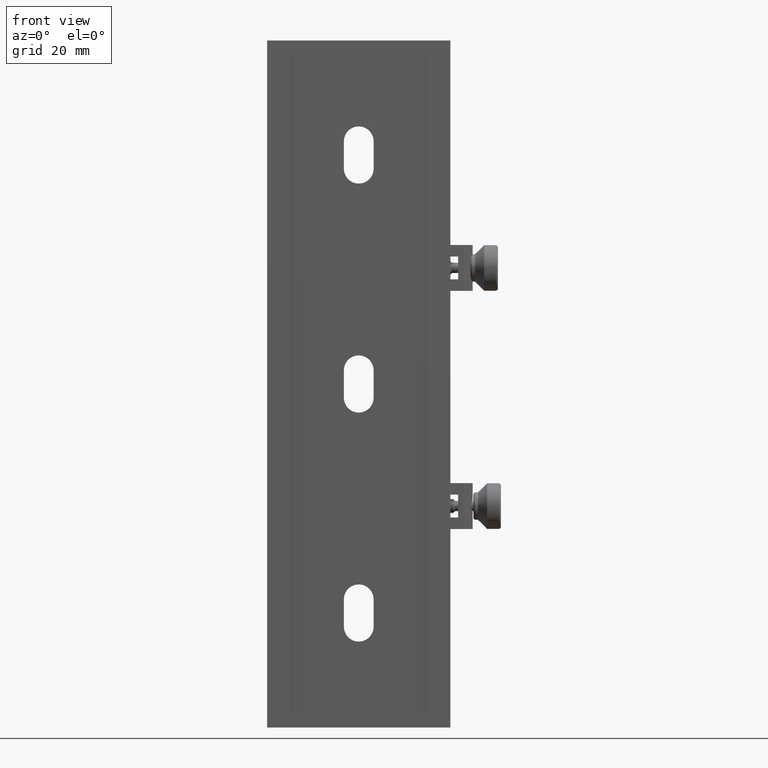
[diagram: clean part render]
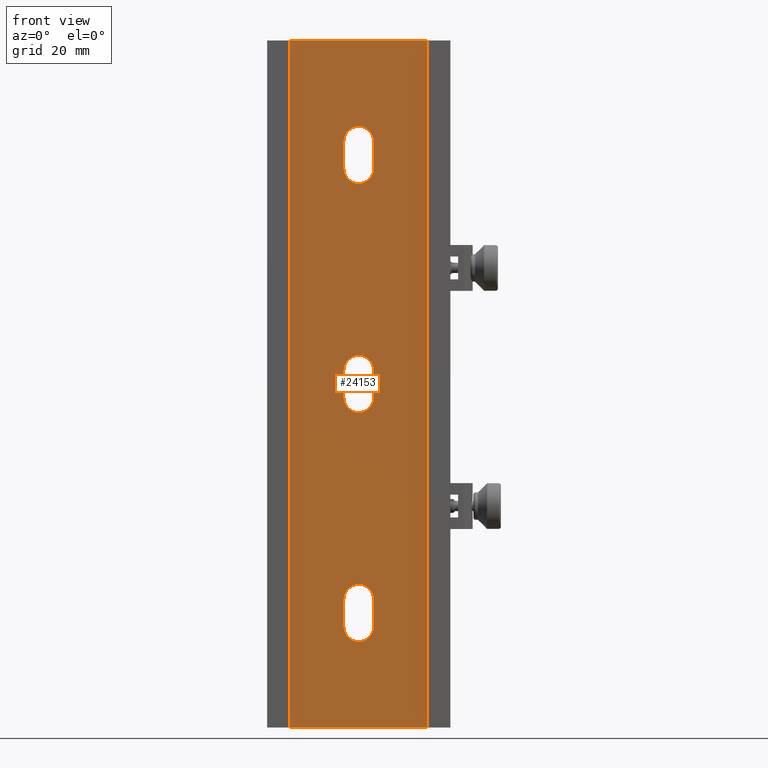
[diagram: same view with one face highlighted and labeled with its STEP entity id]
A machine part, front view. The second image highlights one B-rep face of the part: STEP entity #24153.
In plain terms, the highlighted planar face has unit normal (0, -1, 0).
Its self-contained STEP definition (entity closure, byte-faithful):
#347 = CARTESIAN_POINT ( 'NONE',  ( -173.3798720116146512, -12.36576198869400045, 5.838090410557754240 ) ) ;
#350 = VERTEX_POINT ( 'NONE', #18691 ) ;
#492 = CARTESIAN_POINT ( 'NONE',  ( -173.0271867229824920, -12.36576198869399867, -5.602433634785423777 ) ) ;
#741 = CARTESIAN_POINT ( 'NONE',  ( -177.0151139577997697, -12.36576198869400223, -44.39756636521666877 ) ) ;
#756 = CARTESIAN_POINT ( 'NONE',  ( -178.2711503403900508, -12.36576198869399867, -3.431352460069973631 ) ) ;
#1060 = ORIENTED_EDGE ( 'NONE', *, *, #20217, .F. ) ;
#1205 = CARTESIAN_POINT ( 'NONE',  ( -171.7711503403899940, -12.36576198869400400, 53.43135246006768568 ) ) ;
#1428 = CARTESIAN_POINT ( 'NONE',  ( -178.2711503403900224, -12.36576198869400045, -3.000000000000000000 ) ) ;
#1474 = CARTESIAN_POINT ( 'NONE',  ( -173.0273899555250807, -12.36576198869400223, 55.60223051832749519 ) ) ;
#1596 = CARTESIAN_POINT ( 'NONE',  ( -178.2711503403900508, -12.36576198869400400, -53.43135246006607986 ) ) ;
#1625 = CARTESIAN_POINT ( 'NONE',  ( -178.2711503403900224, -12.36576198869400045, 3.000000000000000000 ) ) ;
#1724 = CARTESIAN_POINT ( 'NONE',  ( -190.0211503403900224, -12.36576198869400045, -25.00000000000000000 ) ) ;
#1808 = EDGE_CURVE ( 'NONE', #6291, #16759, #14099, .T. ) ;
#2464 = CARTESIAN_POINT ( 'NONE',  ( -171.7711503403899940, -12.36576198869400045, 47.00000000000000000 ) ) ;
#2607 = CARTESIAN_POINT ( 'NONE',  ( -175.0211503403900224, -12.36576198869400045, 0.000000000000000000 ) ) ;
#2768 = ORIENTED_EDGE ( 'NONE', *, *, #33820, .T. ) ;
#2805 = VERTEX_POINT ( 'NONE', #12793 ) ;
#3140 = CARTESIAN_POINT ( 'NONE',  ( -171.7711503403899940, -12.36576198869400045, -3.000000000000000000 ) ) ;
#3500 = B_SPLINE_CURVE_WITH_KNOTS ( 'NONE', 3,
 ( #26560, #27316, #22615, #51069 ),
 .UNSPECIFIED., .F., .F.,
 ( 4, 4 ),
 ( 0.000000000000000000, 1.000000000000000000 ),
 .UNSPECIFIED. ) ;
#3509 = CARTESIAN_POINT ( 'NONE',  ( -172.1830599297850313, -12.36576198869399867, -54.64127832872917168 ) ) ;
#3523 = CARTESIAN_POINT ( 'NONE',  ( -171.7711503403899940, -12.36576198869400045, 3.431352460070659305 ) ) ;
#3620 = CARTESIAN_POINT ( 'NONE',  ( -177.0149107252553051, -12.36576198869400223, 44.39776948167231296 ) ) ;
#3781 = CARTESIAN_POINT ( 'NONE',  ( -160.0211503403899940, -12.36576198869400045, 75.00000000000000000 ) ) ;
#4332 = EDGE_LOOP ( 'NONE', ( #33953, #1060, #35070, #31483 ) ) ;
#4438 = CARTESIAN_POINT ( 'NONE',  ( -171.7711503403899940, -12.36576198869400045, -3.000000000000000000 ) ) ;
#4564 = CARTESIAN_POINT ( 'NONE',  ( -172.1834695392872163, -12.36576198869399867, 4.641516131906914922 ) ) ;
#4900 = CARTESIAN_POINT ( 'NONE',  ( -178.2711503403899940, -12.36576198869399867, 53.43060044372946038 ) ) ;
#4904 = CARTESIAN_POINT ( 'NONE',  ( -178.2711503403900224, -12.36576198869400045, 49.00000000000000000 ) ) ;
#4941 = B_SPLINE_CURVE_WITH_KNOTS ( 'NONE', 3,
 ( #43104, #23587, #28791, #3509, #39669, #51784, #10916, #44861, #49867, #37487, #25090, #20868, #13713, #41176, #17689, #5556, #1596, #9767 ),
 .UNSPECIFIED., .F., .F.,
 ( 4, 2, 2, 2, 2, 2, 2, 2, 4 ),
 ( 0.000000000000000000, 0.1250000000000000000, 0.2500000000000000000, 0.3750000000000000000, 0.5000000000000000000, 0.6250000000000000000, 0.7500000000000000000, 0.8750000000000000000, 1.000000000000000000 ),
 .UNSPECIFIED. ) ;
#5025 = EDGE_CURVE ( 'NONE', #47610, #20483, #34914, .T. ) ;
#5091 = VERTEX_POINT ( 'NONE', #49221 ) ;
#5229 = CARTESIAN_POINT ( 'NONE',  ( -174.5908970649494449, -12.36576198869400223, -43.74985633394769735 ) ) ;
#5425 = CARTESIAN_POINT ( 'NONE',  ( -175.8674242792125710, -12.36576198869400223, 56.16739201102096501 ) ) ;
#5556 = CARTESIAN_POINT ( 'NONE',  ( -178.1886865006105722, -12.36576198869400223, -53.84592617846156770 ) ) ;
#6174 = CARTESIAN_POINT ( 'NONE',  ( -178.2711503403900224, -12.36576198869400045, 1.000000000000000000 ) ) ;
#6291 = VERTEX_POINT ( 'NONE', #1428 ) ;
#6860 = VERTEX_POINT ( 'NONE', #10250 ) ;
#7146 = VERTEX_POINT ( 'NONE', #27569 ) ;
#7446 = ORIENTED_EDGE ( 'NONE', *, *, #15521, .T. ) ;
#7477 = CARTESIAN_POINT ( 'NONE',  ( -171.7711503403899940, -12.36576198869400045, -49.00000000000000000 ) ) ;
#7539 = ORIENTED_EDGE ( 'NONE', *, *, #41900, .T. ) ;
#7867 = CARTESIAN_POINT ( 'NONE',  ( -177.6233808007005450, -12.36576198869400045, 54.99376044292382204 ) ) ;
#7869 = CARTESIAN_POINT ( 'NONE',  ( -178.2711503403900224, -12.36576198869400045, -3.000000000000000000 ) ) ;
#7891 = VERTEX_POINT ( 'NONE', #50146 ) ;
#8092 = CARTESIAN_POINT ( 'NONE',  ( -178.2711503403900224, -12.36576198869400045, -53.00000000000000000 ) ) ;
#8147 = CARTESIAN_POINT ( 'NONE',  ( -177.8588311414928000, -12.36576198869400045, -4.641516131907593490 ) ) ;
#8268 = CARTESIAN_POINT ( 'NONE',  ( -190.0211503403900224, -12.36576198869400045, 75.00000000000000000 ) ) ;
#8540 = CARTESIAN_POINT ( 'NONE',  ( -176.6623187119297995, -12.36576198869400045, 5.837824950306081284 ) ) ;
#8851 = CARTESIAN_POINT ( 'NONE',  ( -174.5908970649493881, -12.36576198869400223, 56.25014366604966654 ) ) ;
#9124 = CARTESIAN_POINT ( 'NONE',  ( -171.7711503403899940, -12.36576198869400045, 53.00000000000000000 ) ) ;
#9721 = ORIENTED_EDGE ( 'NONE', *, *, #20283, .T. ) ;
#9767 = CARTESIAN_POINT ( 'NONE',  ( -178.2711503403900224, -12.36576198869400045, -53.00000000000000000 ) ) ;
#10250 = CARTESIAN_POINT ( 'NONE',  ( -190.0211503403900224, -12.36576198869400045, -75.00000000000000000 ) ) ;
#10377 = EDGE_CURVE ( 'NONE', #21278, #47912, #47744, .T. ) ;
#10916 = CARTESIAN_POINT ( 'NONE',  ( -173.3799819688493642, -12.36576198869400045, -55.83782495030509807 ) ) ;
#10939 = CARTESIAN_POINT ( 'NONE',  ( -171.7711503403899940, -12.36576198869400045, 49.00000000000000000 ) ) ;
#11540 = CARTESIAN_POINT ( 'NONE',  ( -174.5908970649555556, -12.36576198869400045, 43.75014366605222449 ) ) ;
#11802 = CARTESIAN_POINT ( 'NONE',  ( -175.8673143219898520, -12.36576198869400223, 43.83287344923642337 ) ) ;
#11826 = CARTESIAN_POINT ( 'NONE',  ( -171.7711503403899940, -12.36576198869400045, 3.000000000000000000 ) ) ;
#12076 = CARTESIAN_POINT ( 'NONE',  ( -172.4187166475423396, -12.36576198869400223, 54.99396355938510794 ) ) ;
#12083 = CARTESIAN_POINT ( 'NONE',  ( -176.6624286691673831, -12.36576198869400045, -5.838090410556037391 ) ) ;
#12336 = CARTESIAN_POINT ( 'NONE',  ( -174.1748764015576967, -12.36576198869400223, 43.83260798898172084 ) ) ;
#12365 = CARTESIAN_POINT ( 'NONE',  ( -178.1886865006106007, -12.36576198869400045, -3.845926178465486789 ) ) ;
#12499 = CARTESIAN_POINT ( 'NONE',  ( -171.7711503403899940, -12.36576198869400045, 3.000000000000000000 ) ) ;
#12793 = CARTESIAN_POINT ( 'NONE',  ( -171.7711503403899940, -12.36576198869400045, -53.00000000000000000 ) ) ;
#12883 = CARTESIAN_POINT ( 'NONE',  ( -177.6235840332367957, -12.36576198869399690, -4.993963559384880568 ) ) ;
#13139 = CARTESIAN_POINT ( 'NONE',  ( -174.1749863587890275, -12.36576198869400223, -43.83287344923432016 ) ) ;
#13654 = CARTESIAN_POINT ( 'NONE',  ( -172.4187166475461481, -12.36576198869400223, -45.00603644060846165 ) ) ;
#13713 = CARTESIAN_POINT ( 'NONE',  ( -177.0149107252534009, -12.36576198869400223, -55.60223051832963392 ) ) ;
#14099 = B_SPLINE_CURVE_WITH_KNOTS ( 'NONE', 3,
 ( #17802, #50244, #6174, #25464 ),
 .UNSPECIFIED., .F., .F.,
 ( 4, 4 ),
 ( 0.000000000000000000, 1.000000000000000000 ),
 .UNSPECIFIED. ) ;
#14218 = FACE_BOUND ( 'NONE', #15563, .T. ) ;
#14382 = CARTESIAN_POINT ( 'NONE',  ( -171.7711503403899940, -12.36576198869400045, 47.00000000000000000 ) ) ;
#15521 = EDGE_CURVE ( 'NONE', #27210, #21278, #3500, .T. ) ;
#15563 = EDGE_LOOP ( 'NONE', ( #33605, #2768, #9721, #26070 ) ) ;
#15637 = CARTESIAN_POINT ( 'NONE',  ( -180.0211503403900224, -12.36576198869400045, 75.00000000000000000 ) ) ;
#15753 = CARTESIAN_POINT ( 'NONE',  ( -171.8540237896735050, -12.36576198869400223, 46.15383601835424798 ) ) ;
#15777 = CARTESIAN_POINT ( 'NONE',  ( -173.3798720116179766, -12.36576198869400223, 55.83809041056036193 ) ) ;
#15904 = CARTESIAN_POINT ( 'NONE',  ( -177.6233808006952586, -12.36576198869400045, 4.993760442926780563 ) ) ;
#16013 = CARTESIAN_POINT ( 'NONE',  ( -178.1886865006105722, -12.36576198869400223, 46.15407382153576776 ) ) ;
#16169 = CARTESIAN_POINT ( 'NONE',  ( -175.4514036158247166, -12.36576198869400045, 6.249856333946735454 ) ) ;
#16270 = CARTESIAN_POINT ( 'NONE',  ( -171.7711503403900508, -12.36576198869399867, 46.56939955626701533 ) ) ;
#16759 = VERTEX_POINT ( 'NONE', #1625 ) ;
#17364 = CARTESIAN_POINT ( 'NONE',  ( -172.1834695392872447, -12.36576198869400223, -45.35848386809283994 ) ) ;
#17565 = CARTESIAN_POINT ( 'NONE',  ( -178.2711503403900224, -12.36576198869400045, 47.00000000000000000 ) ) ;
#17626 = CARTESIAN_POINT ( 'NONE',  ( -175.8674242792243092, -12.36576198869400223, -43.83260798898178479 ) ) ;
#17689 = CARTESIAN_POINT ( 'NONE',  ( -177.8588311414927716, -12.36576198869400223, -54.64151613191145174 ) ) ;
#17802 = CARTESIAN_POINT ( 'NONE',  ( -178.2711503403900224, -12.36576198869400045, -3.000000000000000000 ) ) ;
#18330 = B_SPLINE_CURVE_WITH_KNOTS ( 'NONE', 3,
 ( #20003, #16270, #15753, #40831, #20791, #28164, #48470, #12336, #11540, #47944, #11802, #23700, #3620, #52166, #44528, #16013, #40041, #24491 ),
 .UNSPECIFIED., .F., .F.,
 ( 4, 2, 2, 2, 2, 2, 2, 2, 4 ),
 ( 0.000000000000000000, 0.1250000000000000000, 0.2500000000000000000, 0.3750000000000000000, 0.5000000000000000000, 0.6250000000000000000, 0.7500000000000000000, 0.8750000000000000000, 1.000000000000000000 ),
 .UNSPECIFIED. ) ;
#18691 = CARTESIAN_POINT ( 'NONE',  ( -178.2711503403900224, -12.36576198869400045, 47.00000000000000000 ) ) ;
#19180 = B_SPLINE_CURVE_WITH_KNOTS ( 'NONE', 3,
 ( #34459, #47097, #10939, #14382 ),
 .UNSPECIFIED., .F., .F.,
 ( 4, 4 ),
 ( 0.000000000000000000, 1.000000000000000000 ),
 .UNSPECIFIED. ) ;
#19626 = CARTESIAN_POINT ( 'NONE',  ( -173.0273899555235460, -12.36576198869400045, 5.602230518326646980 ) ) ;
#19752 = CARTESIAN_POINT ( 'NONE',  ( -174.1749863587890275, -12.36576198869400223, 56.16712655076303662 ) ) ;
#20003 = CARTESIAN_POINT ( 'NONE',  ( -171.7711503403899940, -12.36576198869400045, 47.00000000000000000 ) ) ;
#20005 = B_SPLINE_CURVE_WITH_KNOTS ( 'NONE', 3,
 ( #47830, #23845, #15637, #8268 ),
 .UNSPECIFIED., .F., .F.,
 ( 4, 4 ),
 ( 0.000000000000000000, 1.000000000000000000 ),
 .UNSPECIFIED. ) ;
#20217 = EDGE_CURVE ( 'NONE', #25083, #26283, #35239, .T. ) ;
#20283 = EDGE_CURVE ( 'NONE', #7146, #5091, #34030, .T. ) ;
#20483 = VERTEX_POINT ( 'NONE', #3781 ) ;
#20543 = CARTESIAN_POINT ( 'NONE',  ( -174.1748764015559630, -12.36576198869399867, -6.167392011017266640 ) ) ;
#20749 = CARTESIAN_POINT ( 'NONE',  ( -178.2711503403900224, -12.36576198869400045, 53.00000000000000000 ) ) ;
#20791 = CARTESIAN_POINT ( 'NONE',  ( -172.4189198800843883, -12.36576198869400045, 45.00623955707275314 ) ) ;
#20821 = CARTESIAN_POINT ( 'NONE',  ( -171.7711503403900792, -12.36576198869400400, -3.430600443733370586 ) ) ;
#20868 = CARTESIAN_POINT ( 'NONE',  ( -176.6624286691678094, -12.36576198869400223, -55.83809041055517497 ) ) ;
#21083 = CARTESIAN_POINT ( 'NONE',  ( -172.4189198800848999, -12.36576198869399867, -4.993760442927133170 ) ) ;
#21273 = CARTESIAN_POINT ( 'NONE',  ( -171.7711503403899940, -12.36576198869400045, 1.000000000000000000 ) ) ;
#21278 = VERTEX_POINT ( 'NONE', #42420 ) ;
#21514 = AXIS2_PLACEMENT_3D ( 'NONE', #2607, #50634, #30335 ) ;
#21532 = CARTESIAN_POINT ( 'NONE',  ( -175.4514036158306283, -12.36576198869400045, 56.24985633395034768 ) ) ;
#21540 = CARTESIAN_POINT ( 'NONE',  ( -160.0211503403899940, -12.36576198869400045, 25.00000000000000000 ) ) ;
#21566 = ORIENTED_EDGE ( 'NONE', *, *, #50234, .T. ) ;
#21599 = CARTESIAN_POINT ( 'NONE',  ( -177.8592407509996747, -12.36576198869399867, -45.35872167127656240 ) ) ;
#21799 = CARTESIAN_POINT ( 'NONE',  ( -190.0211503403900224, -12.36576198869400045, 75.00000000000000000 ) ) ;
#22547 = B_SPLINE_CURVE_WITH_KNOTS ( 'NONE', 3,
 ( #21799, #37889, #1724, #33922 ),
 .UNSPECIFIED., .F., .F.,
 ( 4, 4 ),
 ( 0.000000000000000000, 1.000000000000000000 ),
 .UNSPECIFIED. ) ;
#22615 = CARTESIAN_POINT ( 'NONE',  ( -178.2711503403900224, -12.36576198869400045, -49.00000000000000000 ) ) ;
#22685 = FACE_BOUND ( 'NONE', #4332, .T. ) ;
#22940 = FACE_BOUND ( 'NONE', #45547, .T. ) ;
#23587 = CARTESIAN_POINT ( 'NONE',  ( -171.7711503403899940, -12.36576198869399867, -53.43060044373567052 ) ) ;
#23597 = CARTESIAN_POINT ( 'NONE',  ( -178.2711503403900508, -12.36576198869400045, 3.430600443733774707 ) ) ;
#23700 = CARTESIAN_POINT ( 'NONE',  ( -176.6624286691632335, -12.36576198869400223, 44.16190958944027045 ) ) ;
#23845 = CARTESIAN_POINT ( 'NONE',  ( -170.0211503403899940, -12.36576198869400045, 75.00000000000000000 ) ) ;
#23846 = CARTESIAN_POINT ( 'NONE',  ( -171.7711503403899940, -12.36576198869400045, -47.00000000000000000 ) ) ;
#23977 = CARTESIAN_POINT ( 'NONE',  ( -171.8536141801694157, -12.36576198869400223, 53.84592617846317353 ) ) ;
#24120 = CARTESIAN_POINT ( 'NONE',  ( -178.1882768911064545, -12.36576198869400045, 3.846163981646733010 ) ) ;
#24153 = ADVANCED_FACE ( 'NONE', ( #42714, #22940, #14218, #22685 ), #38769, .T. ) ;
#24402 = EDGE_LOOP ( 'NONE', ( #38118, #28794, #21566, #26221 ) ) ;
#24491 = CARTESIAN_POINT ( 'NONE',  ( -178.2711503403900224, -12.36576198869400045, 47.00000000000000000 ) ) ;
#24643 = CARTESIAN_POINT ( 'NONE',  ( -174.5908970649552998, -12.36576198869400045, 6.250143666053266323 ) ) ;
#24706 = CARTESIAN_POINT ( 'NONE',  ( -160.0211503403899940, -12.36576198869400045, -75.00000000000000000 ) ) ;
#24963 = CARTESIAN_POINT ( 'NONE',  ( -177.8592407509982536, -12.36576198869399867, 54.64127832872723189 ) ) ;
#25027 = CARTESIAN_POINT ( 'NONE',  ( -178.1882768911036976, -12.36576198869400223, -46.15383601835043237 ) ) ;
#25083 = VERTEX_POINT ( 'NONE', #49132 ) ;
#25090 = CARTESIAN_POINT ( 'NONE',  ( -175.8673143219852761, -12.36576198869400223, -56.16712655076823069 ) ) ;
#25297 = ORIENTED_EDGE ( 'NONE', *, *, #10377, .T. ) ;
#25464 = CARTESIAN_POINT ( 'NONE',  ( -178.2711503403900224, -12.36576198869400045, 3.000000000000000000 ) ) ;
#26070 = ORIENTED_EDGE ( 'NONE', *, *, #34979, .T. ) ;
#26221 = ORIENTED_EDGE ( 'NONE', *, *, #39336, .T. ) ;
#26283 = VERTEX_POINT ( 'NONE', #12499 ) ;
#26560 = CARTESIAN_POINT ( 'NONE',  ( -178.2711503403900224, -12.36576198869400045, -53.00000000000000000 ) ) ;
#27210 = VERTEX_POINT ( 'NONE', #8092 ) ;
#27316 = CARTESIAN_POINT ( 'NONE',  ( -178.2711503403900224, -12.36576198869400045, -51.00000000000000000 ) ) ;
#27541 = CARTESIAN_POINT ( 'NONE',  ( -171.7711503403899940, -12.36576198869400045, -51.00000000000000000 ) ) ;
#27569 = CARTESIAN_POINT ( 'NONE',  ( -178.2711503403900224, -12.36576198869400045, 53.00000000000000000 ) ) ;
#28164 = CARTESIAN_POINT ( 'NONE',  ( -173.0271867229830889, -12.36576198869400223, 44.39756636521474320 ) ) ;
#28611 = CARTESIAN_POINT ( 'NONE',  ( -171.8536141801694725, -12.36576198869400400, 3.845926178466176459 ) ) ;
#28745 = CARTESIAN_POINT ( 'NONE',  ( -172.1830599297828996, -12.36576198869399867, -4.641278328726319735 ) ) ;
#28791 = CARTESIAN_POINT ( 'NONE',  ( -171.8540237896716008, -12.36576198869400223, -53.84616398164385487 ) ) ;
#28794 = ORIENTED_EDGE ( 'NONE', *, *, #50362, .T. ) ;
#29454 = CARTESIAN_POINT ( 'NONE',  ( -178.2711503403900224, -12.36576198869400045, 51.00000000000000000 ) ) ;
#30335 = DIRECTION ( 'NONE',  ( 0.000000000000000000, 0.000000000000000000, -1.000000000000000000 ) ) ;
#31483 = ORIENTED_EDGE ( 'NONE', *, *, #1808, .T. ) ;
#32024 = CARTESIAN_POINT ( 'NONE',  ( -177.0151139577972685, -12.36576198869399867, 5.602433634785779049 ) ) ;
#32424 = CARTESIAN_POINT ( 'NONE',  ( -171.8540237896737892, -12.36576198869400045, -3.846163981646760988 ) ) ;
#32564 = CARTESIAN_POINT ( 'NONE',  ( -178.2711503403900224, -12.36576198869400045, 3.000000000000000000 ) ) ;
#32805 = CARTESIAN_POINT ( 'NONE',  ( -180.0211503403900224, -12.36576198869400045, -75.00000000000000000 ) ) ;
#33475 = CARTESIAN_POINT ( 'NONE',  ( -173.3798720116179481, -12.36576198869400223, -44.16190958944238076 ) ) ;
#33605 = ORIENTED_EDGE ( 'NONE', *, *, #37087, .T. ) ;
#33735 = CARTESIAN_POINT ( 'NONE',  ( -177.6233808006928143, -12.36576198869400045, -45.00623955707082757 ) ) ;
#33820 = EDGE_CURVE ( 'NONE', #350, #7146, #40017, .T. ) ;
#33867 = B_SPLINE_CURVE_WITH_KNOTS ( 'NONE', 3,
 ( #23846, #7477, #27541, #43620 ),
 .UNSPECIFIED., .F., .F.,
 ( 4, 4 ),
 ( 0.000000000000000000, 1.000000000000000000 ),
 .UNSPECIFIED. ) ;
#33922 = CARTESIAN_POINT ( 'NONE',  ( -190.0211503403900224, -12.36576198869400045, -75.00000000000000000 ) ) ;
#33953 = ORIENTED_EDGE ( 'NONE', *, *, #47420, .T. ) ;
#34030 = B_SPLINE_CURVE_WITH_KNOTS ( 'NONE', 3,
 ( #45268, #4900, #47973, #24963, #7867, #41578, #44997, #5425, #21532, #8851, #19752, #15777, #1474, #12076, #37362, #23977, #1205, #9124 ),
 .UNSPECIFIED., .F., .F.,
 ( 4, 2, 2, 2, 2, 2, 2, 2, 4 ),
 ( 0.000000000000000000, 0.1250000000000000000, 0.2500000000000000000, 0.3750000000000000000, 0.5000000000000000000, 0.6250000000000000000, 0.7500000000000000000, 0.8750000000000000000, 1.000000000000000000 ),
 .UNSPECIFIED. ) ;
#34459 = CARTESIAN_POINT ( 'NONE',  ( -171.7711503403899940, -12.36576198869400045, 53.00000000000000000 ) ) ;
#34914 = B_SPLINE_CURVE_WITH_KNOTS ( 'NONE', 3,
 ( #24706, #41584, #21540, #41060 ),
 .UNSPECIFIED., .F., .F.,
 ( 4, 4 ),
 ( 0.000000000000000000, 1.000000000000000000 ),
 .UNSPECIFIED. ) ;
#34979 = EDGE_CURVE ( 'NONE', #5091, #36074, #19180, .T. ) ;
#35070 = ORIENTED_EDGE ( 'NONE', *, *, #47590, .T. ) ;
#35239 = B_SPLINE_CURVE_WITH_KNOTS ( 'NONE', 3,
 ( #3140, #48229, #21273, #11826 ),
 .UNSPECIFIED., .F., .F.,
 ( 4, 4 ),
 ( 0.000000000000000000, 1.000000000000000000 ),
 .UNSPECIFIED. ) ;
#36074 = VERTEX_POINT ( 'NONE', #2464 ) ;
#36124 = CARTESIAN_POINT ( 'NONE',  ( -174.5908970649532534, -12.36576198869400045, -6.249856333946728348 ) ) ;
#36384 = CARTESIAN_POINT ( 'NONE',  ( -160.0211503403899940, -12.36576198869400045, -75.00000000000000000 ) ) ;
#36504 = CARTESIAN_POINT ( 'NONE',  ( -175.8674242792232860, -12.36576198869399867, 6.167392011017279074 ) ) ;
#36622 = CARTESIAN_POINT ( 'NONE',  ( -175.4514036158305714, -12.36576198869400045, -43.75014366605229554 ) ) ;
#37087 = EDGE_CURVE ( 'NONE', #36074, #350, #18330, .T. ) ;
#37167 = CARTESIAN_POINT ( 'NONE',  ( -171.7711503403899940, -12.36576198869400400, -46.56864753992967110 ) ) ;
#37362 = CARTESIAN_POINT ( 'NONE',  ( -172.1834695392872447, -12.36576198869400223, 54.64151613190983880 ) ) ;
#37487 = CARTESIAN_POINT ( 'NONE',  ( -175.4514036158309978, -12.36576198869400223, -56.25014366605226712 ) ) ;
#37701 = CARTESIAN_POINT ( 'NONE',  ( -176.6623187119287763, -12.36576198869400045, -44.16217504969491614 ) ) ;
#37889 = CARTESIAN_POINT ( 'NONE',  ( -190.0211503403900224, -12.36576198869400045, 25.00000000000000000 ) ) ;
#38118 = ORIENTED_EDGE ( 'NONE', *, *, #5025, .T. ) ;
#38769 = PLANE ( 'NONE',  #21514 ) ;
#39336 = EDGE_CURVE ( 'NONE', #6860, #47610, #40755, .T. ) ;
#39662 = B_SPLINE_CURVE_WITH_KNOTS ( 'NONE', 3,
 ( #4438, #20821, #32424, #28745, #21083, #492, #44552, #20543, #36124, #40607, #49030, #12083, #44819, #12883, #8147, #12365, #756, #7869 ),
 .UNSPECIFIED., .F., .F.,
 ( 4, 2, 2, 2, 2, 2, 2, 2, 4 ),
 ( 0.000000000000000000, 0.1249999999999998890, 0.2499999999999998890, 0.3749999999999998890, 0.4999999999999998890, 0.6249999999999998890, 0.7499999999999998890, 0.8749999999999998890, 1.000000000000000000 ),
 .UNSPECIFIED. ) ;
#39669 = CARTESIAN_POINT ( 'NONE',  ( -172.4189198800843883, -12.36576198869400045, -54.99376044292729659 ) ) ;
#39678 = CARTESIAN_POINT ( 'NONE',  ( -172.4187166475439312, -12.36576198869400045, 4.993963559385911744 ) ) ;
#40017 = B_SPLINE_CURVE_WITH_KNOTS ( 'NONE', 3,
 ( #17565, #4904, #29454, #20749 ),
 .UNSPECIFIED., .F., .F.,
 ( 4, 4 ),
 ( 0.000000000000000000, 1.000000000000000000 ),
 .UNSPECIFIED. ) ;
#40041 = CARTESIAN_POINT ( 'NONE',  ( -178.2711503403900508, -12.36576198869400400, 46.56864753993128403 ) ) ;
#40607 = CARTESIAN_POINT ( 'NONE',  ( -175.4514036158267629, -12.36576198869400045, -6.250143666053271652 ) ) ;
#40725 = CARTESIAN_POINT ( 'NONE',  ( -174.1749863587922675, -12.36576198869400045, 6.167126550765607007 ) ) ;
#40755 = B_SPLINE_CURVE_WITH_KNOTS ( 'NONE', 3,
 ( #49126, #32805, #44394, #48337 ),
 .UNSPECIFIED., .F., .F.,
 ( 4, 4 ),
 ( 0.000000000000000000, 1.000000000000000000 ),
 .UNSPECIFIED. ) ;
#40831 = CARTESIAN_POINT ( 'NONE',  ( -172.1830599297831270, -12.36576198869399867, 45.35872167127276811 ) ) ;
#41060 = CARTESIAN_POINT ( 'NONE',  ( -160.0211503403899940, -12.36576198869400045, 75.00000000000000000 ) ) ;
#41062 = CARTESIAN_POINT ( 'NONE',  ( -171.7711503403899940, -12.36576198869400045, -47.00000000000000000 ) ) ;
#41111 = CARTESIAN_POINT ( 'NONE',  ( -171.8536141801694157, -12.36576198869400223, -46.15407382153416194 ) ) ;
#41176 = CARTESIAN_POINT ( 'NONE',  ( -177.6235840332391831, -12.36576198869400223, -54.99396355938296210 ) ) ;
#41456 = ORIENTED_EDGE ( 'NONE', *, *, #42618, .T. ) ;
#41578 = CARTESIAN_POINT ( 'NONE',  ( -177.0151139577920105, -12.36576198869400223, 55.60243363478875978 ) ) ;
#41584 = CARTESIAN_POINT ( 'NONE',  ( -160.0211503403899940, -12.36576198869400045, -25.00000000000000000 ) ) ;
#41638 = CARTESIAN_POINT ( 'NONE',  ( -178.2711503403899940, -12.36576198869399867, -46.56939955627019145 ) ) ;
#41900 = EDGE_CURVE ( 'NONE', #47912, #2805, #33867, .T. ) ;
#42420 = CARTESIAN_POINT ( 'NONE',  ( -178.2711503403900224, -12.36576198869400045, -47.00000000000000000 ) ) ;
#42618 = EDGE_CURVE ( 'NONE', #2805, #27210, #4941, .T. ) ;
#42714 = FACE_OUTER_BOUND ( 'NONE', #24402, .T. ) ;
#43104 = CARTESIAN_POINT ( 'NONE',  ( -171.7711503403899940, -12.36576198869400045, -53.00000000000000000 ) ) ;
#43620 = CARTESIAN_POINT ( 'NONE',  ( -171.7711503403899940, -12.36576198869400045, -53.00000000000000000 ) ) ;
#43622 = CARTESIAN_POINT ( 'NONE',  ( -177.8592407509969462, -12.36576198869399867, 4.641278328726346381 ) ) ;
#44394 = CARTESIAN_POINT ( 'NONE',  ( -170.0211503403899940, -12.36576198869400045, -75.00000000000000000 ) ) ;
#44528 = CARTESIAN_POINT ( 'NONE',  ( -177.8588311414927716, -12.36576198869400223, 45.35848386809123411 ) ) ;
#44552 = CARTESIAN_POINT ( 'NONE',  ( -173.3799819688508990, -12.36576198869400045, -5.837824950306093719 ) ) ;
#44805 = CARTESIAN_POINT ( 'NONE',  ( -171.7711503403899940, -12.36576198869400045, -47.00000000000000000 ) ) ;
#44819 = CARTESIAN_POINT ( 'NONE',  ( -177.0149107252557599, -12.36576198869400045, -5.602230518327679931 ) ) ;
#44861 = CARTESIAN_POINT ( 'NONE',  ( -174.1748764015576114, -12.36576198869400223, -56.16739201101830048 ) ) ;
#44997 = CARTESIAN_POINT ( 'NONE',  ( -176.6623187119405145, -12.36576198869400045, 55.83782495030243354 ) ) ;
#45268 = CARTESIAN_POINT ( 'NONE',  ( -178.2711503403900224, -12.36576198869400045, 53.00000000000000000 ) ) ;
#45547 = EDGE_LOOP ( 'NONE', ( #41456, #7446, #25297, #7539 ) ) ;
#47097 = CARTESIAN_POINT ( 'NONE',  ( -171.7711503403899940, -12.36576198869400045, 51.00000000000000000 ) ) ;
#47420 = EDGE_CURVE ( 'NONE', #16759, #26283, #51607, .T. ) ;
#47590 = EDGE_CURVE ( 'NONE', #25083, #6291, #39662, .T. ) ;
#47610 = VERTEX_POINT ( 'NONE', #36384 ) ;
#47744 = B_SPLINE_CURVE_WITH_KNOTS ( 'NONE', 3,
 ( #49274, #41638, #25027, #21599, #33735, #741, #37701, #17626, #36622, #5229, #13139, #33475, #49804, #13654, #17364, #41111, #37167, #44805 ),
 .UNSPECIFIED., .F., .F.,
 ( 4, 2, 2, 2, 2, 2, 2, 2, 4 ),
 ( 0.000000000000000000, 0.1250000000000000000, 0.2500000000000000000, 0.3750000000000000000, 0.5000000000000000000, 0.6250000000000000000, 0.7500000000000000000, 0.8750000000000000000, 1.000000000000000000 ),
 .UNSPECIFIED. ) ;
#47830 = CARTESIAN_POINT ( 'NONE',  ( -160.0211503403899940, -12.36576198869400045, 75.00000000000000000 ) ) ;
#47912 = VERTEX_POINT ( 'NONE', #41062 ) ;
#47944 = CARTESIAN_POINT ( 'NONE',  ( -175.4514036158244892, -12.36576198869400223, 43.74985633394776841 ) ) ;
#47973 = CARTESIAN_POINT ( 'NONE',  ( -178.1882768911050903, -12.36576198869400223, 53.84616398164577333 ) ) ;
#48229 = CARTESIAN_POINT ( 'NONE',  ( -171.7711503403899940, -12.36576198869400045, -1.000000000000000000 ) ) ;
#48337 = CARTESIAN_POINT ( 'NONE',  ( -160.0211503403899940, -12.36576198869400045, -75.00000000000000000 ) ) ;
#48470 = CARTESIAN_POINT ( 'NONE',  ( -173.3799819688493073, -12.36576198869400045, 44.16217504969498719 ) ) ;
#48642 = CARTESIAN_POINT ( 'NONE',  ( -171.7711503403899940, -12.36576198869400045, 3.000000000000000000 ) ) ;
#49030 = CARTESIAN_POINT ( 'NONE',  ( -175.8673143219856456, -12.36576198869400045, -6.167126550767320303 ) ) ;
#49126 = CARTESIAN_POINT ( 'NONE',  ( -190.0211503403900224, -12.36576198869400045, -75.00000000000000000 ) ) ;
#49132 = CARTESIAN_POINT ( 'NONE',  ( -171.7711503403899940, -12.36576198869400045, -3.000000000000000000 ) ) ;
#49221 = CARTESIAN_POINT ( 'NONE',  ( -171.7711503403899940, -12.36576198869400045, 53.00000000000000000 ) ) ;
#49274 = CARTESIAN_POINT ( 'NONE',  ( -178.2711503403900224, -12.36576198869400045, -47.00000000000000000 ) ) ;
#49804 = CARTESIAN_POINT ( 'NONE',  ( -173.0273899555213006, -12.36576198869400223, -44.39776948167904891 ) ) ;
#49867 = CARTESIAN_POINT ( 'NONE',  ( -174.5908970649490186, -12.36576198869400045, -56.24985633394773998 ) ) ;
#50146 = CARTESIAN_POINT ( 'NONE',  ( -190.0211503403900224, -12.36576198869400045, 75.00000000000000000 ) ) ;
#50234 = EDGE_CURVE ( 'NONE', #7891, #6860, #22547, .T. ) ;
#50244 = CARTESIAN_POINT ( 'NONE',  ( -178.2711503403900224, -12.36576198869400045, -1.000000000000000000 ) ) ;
#50362 = EDGE_CURVE ( 'NONE', #20483, #7891, #20005, .T. ) ;
#50634 = DIRECTION ( 'NONE',  ( 0.000000000000000000, -1.000000000000000000, 0.000000000000000000 ) ) ;
#51069 = CARTESIAN_POINT ( 'NONE',  ( -178.2711503403900224, -12.36576198869400045, -47.00000000000000000 ) ) ;
#51607 = B_SPLINE_CURVE_WITH_KNOTS ( 'NONE', 3,
 ( #32564, #23597, #24120, #43622, #15904, #32024, #8540, #36504, #16169, #24643, #40725, #347, #19626, #39678, #4564, #28611, #3523, #48642 ),
 .UNSPECIFIED., .F., .F.,
 ( 4, 2, 2, 2, 2, 2, 2, 2, 4 ),
 ( 0.000000000000000000, 0.1250000000000001110, 0.2500000000000001110, 0.3750000000000001110, 0.5000000000000001110, 0.6250000000000001110, 0.7500000000000001110, 0.8750000000000001110, 1.000000000000000000 ),
 .UNSPECIFIED. ) ;
#51784 = CARTESIAN_POINT ( 'NONE',  ( -173.0271867229830889, -12.36576198869400223, -55.60243363478529233 ) ) ;
#52166 = CARTESIAN_POINT ( 'NONE',  ( -177.6235840332373073, -12.36576198869400223, 45.00603644061519049 ) ) ;